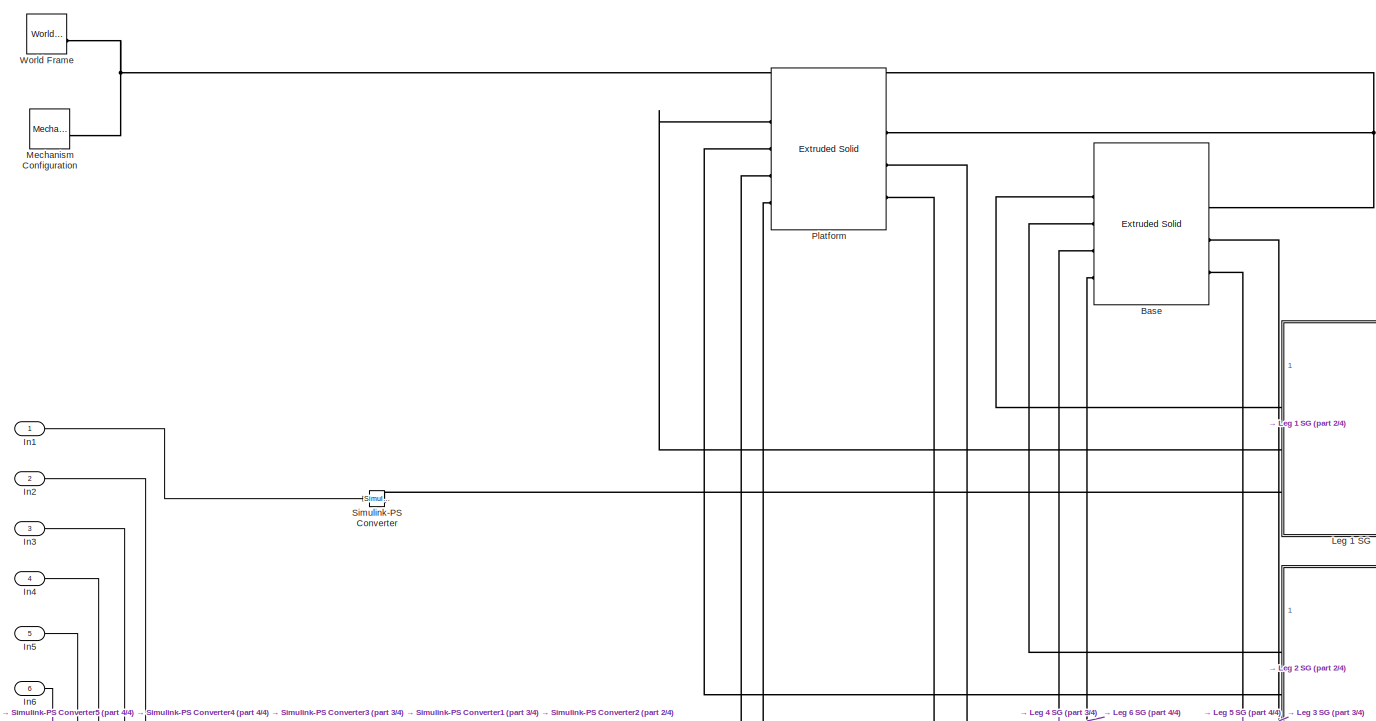
[diagram: root canvas - part 1/4, full width, top band]
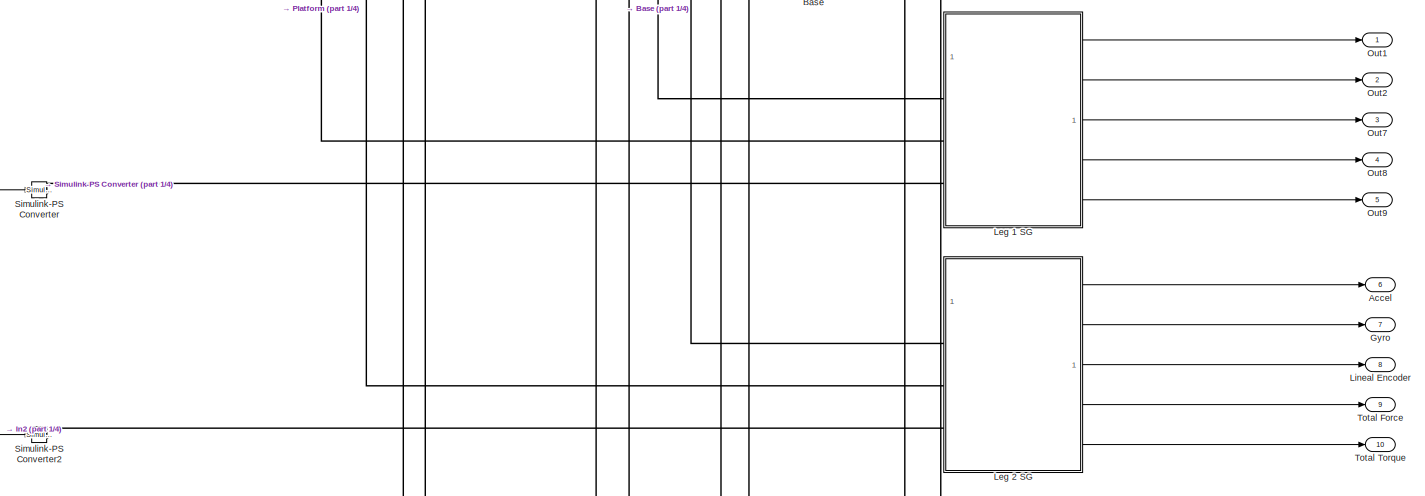
[diagram: root canvas - part 2/4, full width, top band]
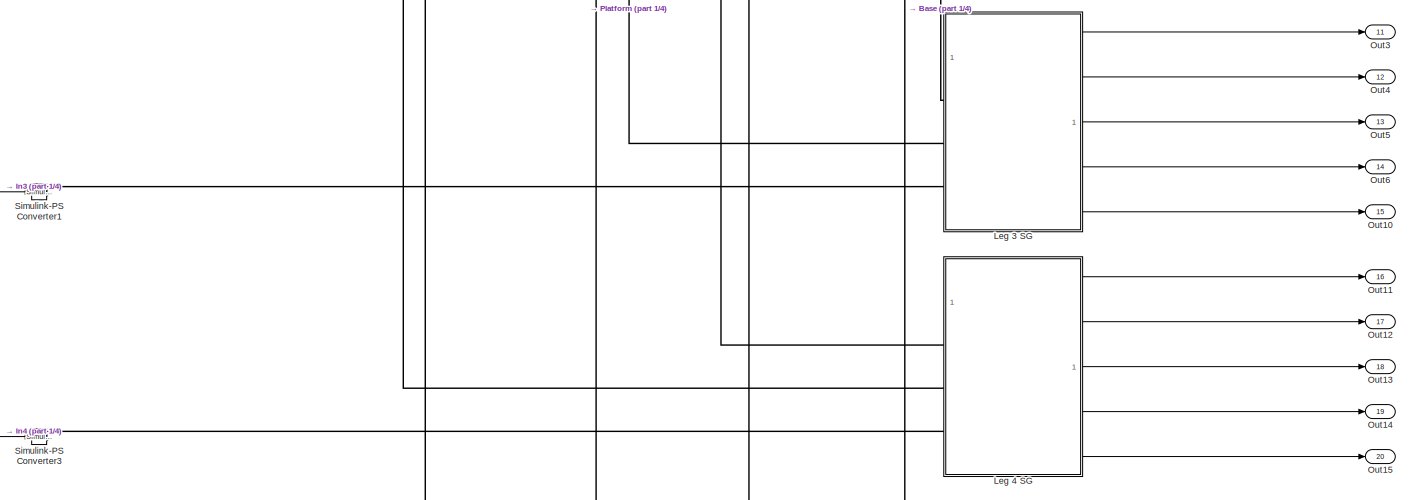
[diagram: root canvas - part 3/4, full width, middle band]
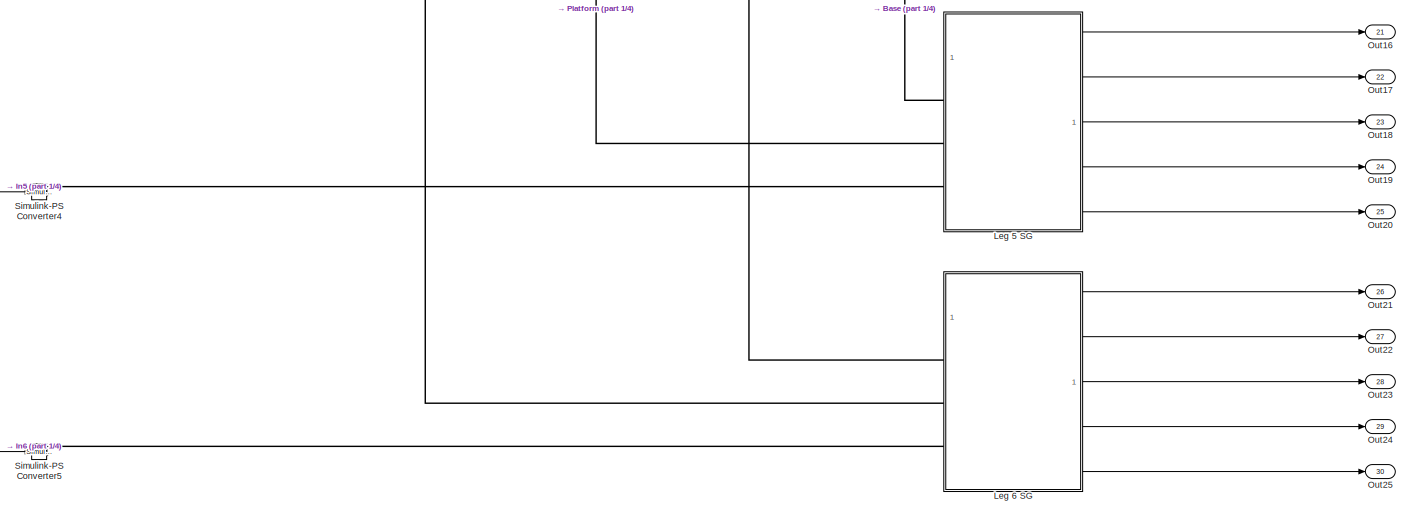
[diagram: root canvas - part 4/4, full width, bottom band]
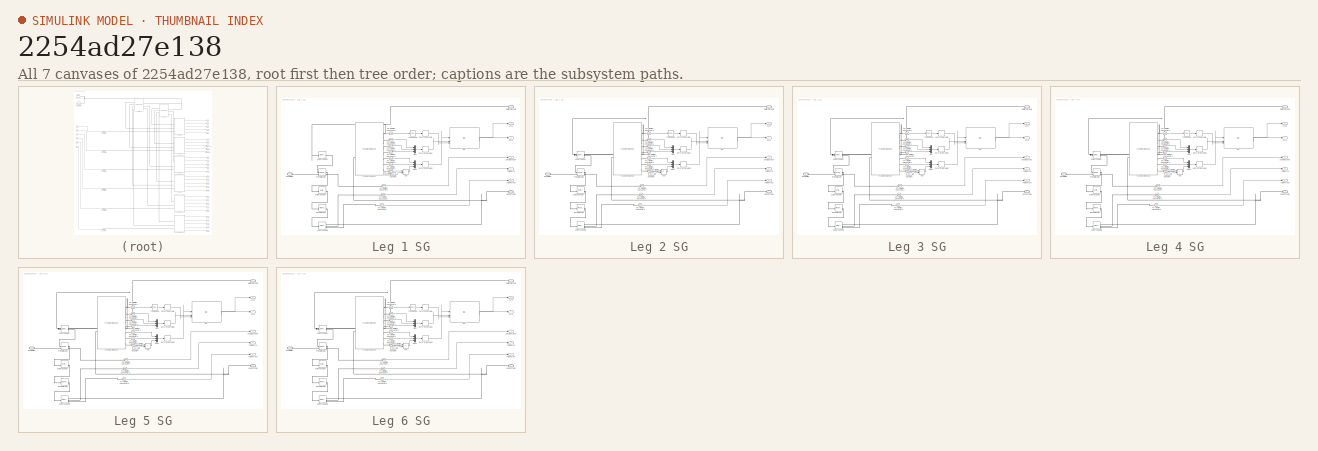
[diagram: thumbnail index - all 7 canvases of the model, root first then tree order]
MODEL slx_2254ad27e138
KIND model
CONFIG AbsTol = auto
CONFIG EnableMultiTasking = off
CONFIG FixedStep = auto
CONFIG MaxStep = auto
CONFIG MinStep = auto
CONFIG RelTol = 1e-3
CONFIG SampleTimeConstraint = Unconstrained
CONFIG SolverName = VariableStepAuto
CONFIG StartTime = 0.0
CONFIG StopTime = 10.0
BLOCK [Outport] Accel
  Port = 6
  SignalName = accel 2
BLOCK [Reference] Base  REF=sm_lib/Body Elements/Extruded Solid
  SourceBlock = sm_lib/Body Elements/Extruded Solid
  SourceType = Extruded Solid
BLOCK [Outport] Gyro
  Port = 7
  SignalName = gyro 2
BLOCK [Inport] In1
BLOCK [Inport] In2
  Port = 2
BLOCK [Inport] In3
  Port = 3
BLOCK [Inport] In4
  Port = 4
BLOCK [Inport] In5
  Port = 5
BLOCK [Inport] In6
  Port = 6
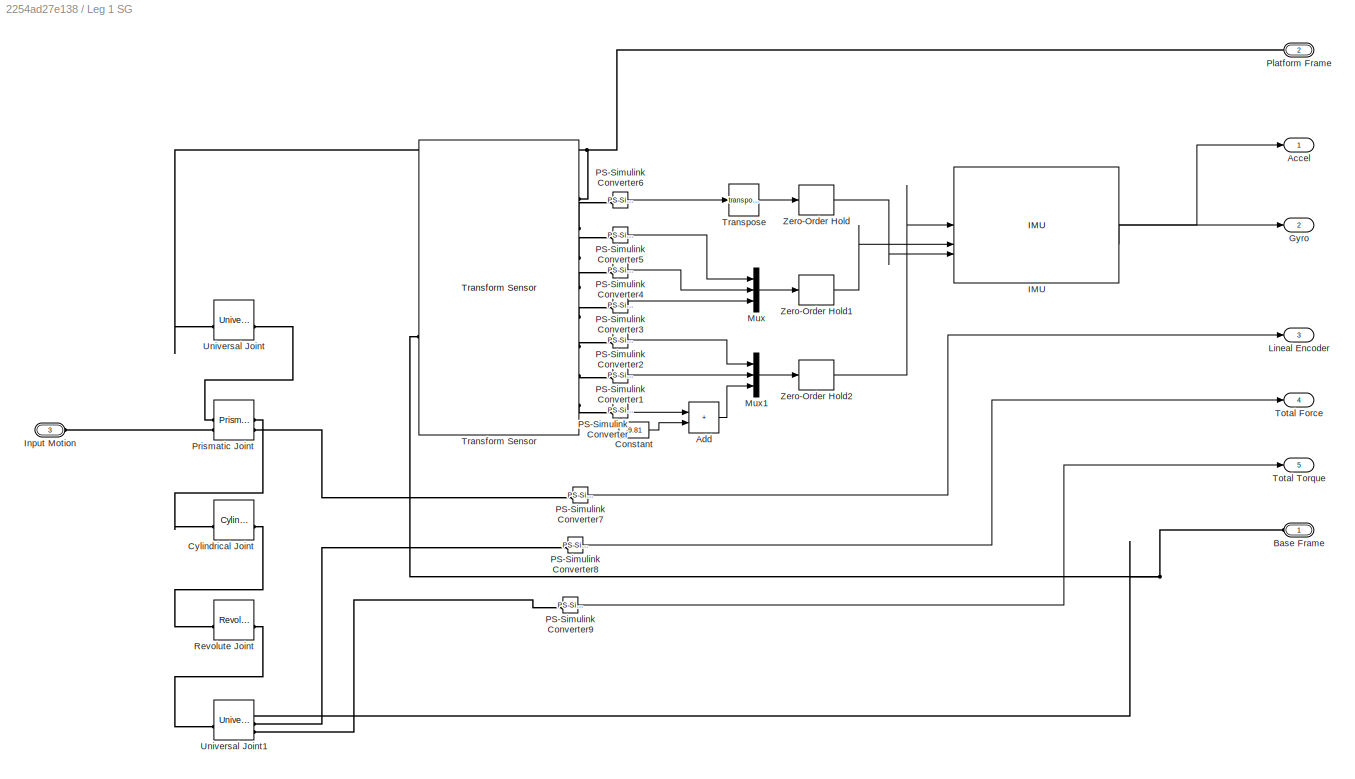
BLOCK [SubSystem] Leg 1 SG
BLOCK [Outport] Leg 1 SG/Accel
BLOCK [Sum] Leg 1 SG/Add
  IconShape = rectangular
BLOCK [PMIOPort] Leg 1 SG/Base Frame
  NameLocation = top
  Side = Left
BLOCK [Constant] Leg 1 SG/Constant
  Value = -9.81
BLOCK [Reference] Leg 1 SG/Cylindrical Joint  REF=sm_lib/Joints/Cylindrical
Joint
  SourceBlock = sm_lib/Joints/Cylindrical\nJoint
  SourceType = Cylindrical\nJoint
BLOCK [Outport] Leg 1 SG/Gyro
  Port = 2
BLOCK [Reference] Leg 1 SG/IMU  REF=mspsensorlib/IMU
  SourceBlock = mspsensorlib/IMU
  SourceType = fusion.simulink.imuSensor
BLOCK [PMIOPort] Leg 1 SG/Input Motion
  Port = 3
  Side = Left
BLOCK [Outport] Leg 1 SG/Lineal Encoder
  Port = 3
BLOCK [Mux] Leg 1 SG/Mux
  DisplayOption = bar
  Inputs = 3
BLOCK [Mux] Leg 1 SG/Mux1
  DisplayOption = bar
  Inputs = 3
BLOCK [Reference] Leg 1 SG/PS-Simulink Converter  REF=nesl_utility/PS-Simulink
Converter
  SourceBlock = nesl_utility/PS-Simulink\nConverter
  SourceType = PS-Simulink\nConverter
BLOCK [Reference] Leg 1 SG/PS-Simulink Converter1  REF=nesl_utility/PS-Simulink
Converter
  SourceBlock = nesl_utility/PS-Simulink\nConverter
  SourceType = PS-Simulink\nConverter
BLOCK [Reference] Leg 1 SG/PS-Simulink Converter2  REF=nesl_utility/PS-Simulink
Converter
  SourceBlock = nesl_utility/PS-Simulink\nConverter
  SourceType = PS-Simulink\nConverter
BLOCK [Reference] Leg 1 SG/PS-Simulink Converter3  REF=nesl_utility/PS-Simulink
Converter
  SourceBlock = nesl_utility/PS-Simulink\nConverter
  SourceType = PS-Simulink\nConverter
BLOCK [Reference] Leg 1 SG/PS-Simulink Converter4  REF=nesl_utility/PS-Simulink
Converter
  SourceBlock = nesl_utility/PS-Simulink\nConverter
  SourceType = PS-Simulink\nConverter
BLOCK [Reference] Leg 1 SG/PS-Simulink Converter5  REF=nesl_utility/PS-Simulink
Converter
  SourceBlock = nesl_utility/PS-Simulink\nConverter
  SourceType = PS-Simulink\nConverter
BLOCK [Reference] Leg 1 SG/PS-Simulink Converter6  REF=nesl_utility/PS-Simulink
Converter
  SourceBlock = nesl_utility/PS-Simulink\nConverter
  SourceType = PS-Simulink\nConverter
BLOCK [Reference] Leg 1 SG/PS-Simulink Converter7  REF=nesl_utility/PS-Simulink
Converter
  SourceBlock = nesl_utility/PS-Simulink\nConverter
  SourceType = PS-Simulink\nConverter
BLOCK [Reference] Leg 1 SG/PS-Simulink Converter8  REF=nesl_utility/PS-Simulink
Converter
  SourceBlock = nesl_utility/PS-Simulink\nConverter
  SourceType = PS-Simulink\nConverter
BLOCK [Reference] Leg 1 SG/PS-Simulink Converter9  REF=nesl_utility/PS-Simulink
Converter
  SourceBlock = nesl_utility/PS-Simulink\nConverter
  SourceType = PS-Simulink\nConverter
BLOCK [PMIOPort] Leg 1 SG/Platform Frame
  NameLocation = top
  Port = 2
  Side = Left
BLOCK [Reference] Leg 1 SG/Prismatic Joint  REF=sm_lib/Joints/Prismatic
Joint
  SourceBlock = sm_lib/Joints/Prismatic\nJoint
  SourceType = Prismatic\nJoint
BLOCK [Reference] Leg 1 SG/Revolute Joint  REF=sm_lib/Joints/Revolute Joint
  SourceBlock = sm_lib/Joints/Revolute Joint
  SourceType = Revolute Joint
BLOCK [Outport] Leg 1 SG/Total Force
  Port = 4
BLOCK [Outport] Leg 1 SG/Total Torque
  Port = 5
BLOCK [Reference] Leg 1 SG/Transform Sensor  REF=sm_lib/Frames and
Transforms/Transform
Sensor
  SourceBlock = sm_lib/Frames and\nTransforms/Transform\nSensor
  SourceType = Transform\nSensor
BLOCK [Math] Leg 1 SG/Transpose
  Operator = transpose
BLOCK [Reference] Leg 1 SG/Universal Joint  REF=sm_lib/Joints/Universal
Joint
  SourceBlock = sm_lib/Joints/Universal\nJoint
  SourceType = Universal\nJoint
BLOCK [Reference] Leg 1 SG/Universal Joint1  REF=sm_lib/Joints/Universal
Joint
  SourceBlock = sm_lib/Joints/Universal\nJoint
  SourceType = Universal\nJoint
BLOCK [ZeroOrderHold] Leg 1 SG/Zero-Order Hold
  SampleTime = -1
BLOCK [ZeroOrderHold] Leg 1 SG/Zero-Order Hold1
  SampleTime = -1
BLOCK [ZeroOrderHold] Leg 1 SG/Zero-Order Hold2
  SampleTime = -1
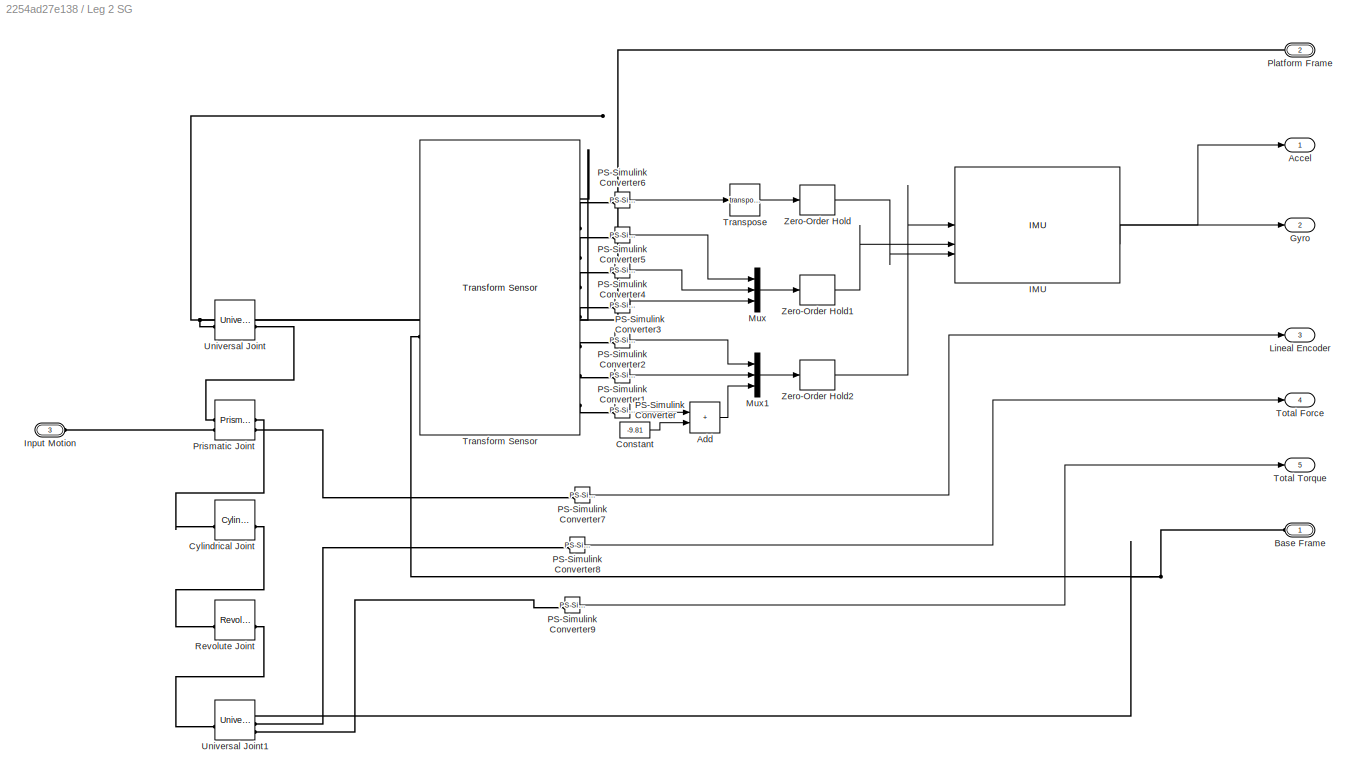
BLOCK [SubSystem] Leg 2 SG
BLOCK [Outport] Leg 2 SG/Accel
BLOCK [Sum] Leg 2 SG/Add
  IconShape = rectangular
BLOCK [PMIOPort] Leg 2 SG/Base Frame
  NameLocation = top
  Side = Left
BLOCK [Constant] Leg 2 SG/Constant
  Value = -9.81
BLOCK [Reference] Leg 2 SG/Cylindrical Joint  REF=sm_lib/Joints/Cylindrical
Joint
  SourceBlock = sm_lib/Joints/Cylindrical\nJoint
  SourceType = Cylindrical\nJoint
BLOCK [Outport] Leg 2 SG/Gyro
  Port = 2
BLOCK [Reference] Leg 2 SG/IMU  REF=mspsensorlib/IMU
  SourceBlock = mspsensorlib/IMU
  SourceType = fusion.simulink.imuSensor
BLOCK [PMIOPort] Leg 2 SG/Input Motion
  Port = 3
  Side = Left
BLOCK [Outport] Leg 2 SG/Lineal Encoder
  Port = 3
BLOCK [Mux] Leg 2 SG/Mux
  DisplayOption = bar
  Inputs = 3
BLOCK [Mux] Leg 2 SG/Mux1
  DisplayOption = bar
  Inputs = 3
BLOCK [Reference] Leg 2 SG/PS-Simulink Converter  REF=nesl_utility/PS-Simulink
Converter
  SourceBlock = nesl_utility/PS-Simulink\nConverter
  SourceType = PS-Simulink\nConverter
BLOCK [Reference] Leg 2 SG/PS-Simulink Converter1  REF=nesl_utility/PS-Simulink
Converter
  SourceBlock = nesl_utility/PS-Simulink\nConverter
  SourceType = PS-Simulink\nConverter
BLOCK [Reference] Leg 2 SG/PS-Simulink Converter2  REF=nesl_utility/PS-Simulink
Converter
  SourceBlock = nesl_utility/PS-Simulink\nConverter
  SourceType = PS-Simulink\nConverter
BLOCK [Reference] Leg 2 SG/PS-Simulink Converter3  REF=nesl_utility/PS-Simulink
Converter
  SourceBlock = nesl_utility/PS-Simulink\nConverter
  SourceType = PS-Simulink\nConverter
BLOCK [Reference] Leg 2 SG/PS-Simulink Converter4  REF=nesl_utility/PS-Simulink
Converter
  SourceBlock = nesl_utility/PS-Simulink\nConverter
  SourceType = PS-Simulink\nConverter
BLOCK [Reference] Leg 2 SG/PS-Simulink Converter5  REF=nesl_utility/PS-Simulink
Converter
  SourceBlock = nesl_utility/PS-Simulink\nConverter
  SourceType = PS-Simulink\nConverter
BLOCK [Reference] Leg 2 SG/PS-Simulink Converter6  REF=nesl_utility/PS-Simulink
Converter
  SourceBlock = nesl_utility/PS-Simulink\nConverter
  SourceType = PS-Simulink\nConverter
BLOCK [Reference] Leg 2 SG/PS-Simulink Converter7  REF=nesl_utility/PS-Simulink
Converter
  SourceBlock = nesl_utility/PS-Simulink\nConverter
  SourceType = PS-Simulink\nConverter
BLOCK [Reference] Leg 2 SG/PS-Simulink Converter8  REF=nesl_utility/PS-Simulink
Converter
  SourceBlock = nesl_utility/PS-Simulink\nConverter
  SourceType = PS-Simulink\nConverter
BLOCK [Reference] Leg 2 SG/PS-Simulink Converter9  REF=nesl_utility/PS-Simulink
Converter
  SourceBlock = nesl_utility/PS-Simulink\nConverter
  SourceType = PS-Simulink\nConverter
BLOCK [PMIOPort] Leg 2 SG/Platform Frame
  NameLocation = top
  Port = 2
  Side = Left
BLOCK [Reference] Leg 2 SG/Prismatic Joint  REF=sm_lib/Joints/Prismatic
Joint
  SourceBlock = sm_lib/Joints/Prismatic\nJoint
  SourceType = Prismatic\nJoint
BLOCK [Reference] Leg 2 SG/Revolute Joint  REF=sm_lib/Joints/Revolute Joint
  SourceBlock = sm_lib/Joints/Revolute Joint
  SourceType = Revolute Joint
BLOCK [Outport] Leg 2 SG/Total Force
  Port = 4
BLOCK [Outport] Leg 2 SG/Total Torque
  Port = 5
BLOCK [Reference] Leg 2 SG/Transform Sensor  REF=sm_lib/Frames and
Transforms/Transform
Sensor
  SourceBlock = sm_lib/Frames and\nTransforms/Transform\nSensor
  SourceType = Transform\nSensor
BLOCK [Math] Leg 2 SG/Transpose
  Operator = transpose
BLOCK [Reference] Leg 2 SG/Universal Joint  REF=sm_lib/Joints/Universal
Joint
  SourceBlock = sm_lib/Joints/Universal\nJoint
  SourceType = Universal\nJoint
BLOCK [Reference] Leg 2 SG/Universal Joint1  REF=sm_lib/Joints/Universal
Joint
  SourceBlock = sm_lib/Joints/Universal\nJoint
  SourceType = Universal\nJoint
BLOCK [ZeroOrderHold] Leg 2 SG/Zero-Order Hold
  SampleTime = -1
BLOCK [ZeroOrderHold] Leg 2 SG/Zero-Order Hold1
  SampleTime = -1
BLOCK [ZeroOrderHold] Leg 2 SG/Zero-Order Hold2
  SampleTime = -1
BLOCK [SubSystem] Leg 3 SG
BLOCK [Outport] Leg 3 SG/Accel
BLOCK [Sum] Leg 3 SG/Add
  IconShape = rectangular
BLOCK [PMIOPort] Leg 3 SG/Base Frame
  NameLocation = top
  Side = Left
BLOCK [Constant] Leg 3 SG/Constant
  Value = -9.81
BLOCK [Reference] Leg 3 SG/Cylindrical Joint  REF=sm_lib/Joints/Cylindrical
Joint
  SourceBlock = sm_lib/Joints/Cylindrical\nJoint
  SourceType = Cylindrical\nJoint
BLOCK [Outport] Leg 3 SG/Gyro
  Port = 2
BLOCK [Reference] Leg 3 SG/IMU  REF=mspsensorlib/IMU
  SourceBlock = mspsensorlib/IMU
  SourceType = fusion.simulink.imuSensor
BLOCK [PMIOPort] Leg 3 SG/Input Motion
  Port = 3
  Side = Left
BLOCK [Outport] Leg 3 SG/Lineal Encoder
  Port = 3
BLOCK [Mux] Leg 3 SG/Mux
  DisplayOption = bar
  Inputs = 3
BLOCK [Mux] Leg 3 SG/Mux1
  DisplayOption = bar
  Inputs = 3
BLOCK [Reference] Leg 3 SG/PS-Simulink Converter  REF=nesl_utility/PS-Simulink
Converter
  SourceBlock = nesl_utility/PS-Simulink\nConverter
  SourceType = PS-Simulink\nConverter
BLOCK [Reference] Leg 3 SG/PS-Simulink Converter1  REF=nesl_utility/PS-Simulink
Converter
  SourceBlock = nesl_utility/PS-Simulink\nConverter
  SourceType = PS-Simulink\nConverter
BLOCK [Reference] Leg 3 SG/PS-Simulink Converter2  REF=nesl_utility/PS-Simulink
Converter
  SourceBlock = nesl_utility/PS-Simulink\nConverter
  SourceType = PS-Simulink\nConverter
BLOCK [Reference] Leg 3 SG/PS-Simulink Converter3  REF=nesl_utility/PS-Simulink
Converter
  SourceBlock = nesl_utility/PS-Simulink\nConverter
  SourceType = PS-Simulink\nConverter
BLOCK [Reference] Leg 3 SG/PS-Simulink Converter4  REF=nesl_utility/PS-Simulink
Converter
  SourceBlock = nesl_utility/PS-Simulink\nConverter
  SourceType = PS-Simulink\nConverter
BLOCK [Reference] Leg 3 SG/PS-Simulink Converter5  REF=nesl_utility/PS-Simulink
Converter
  SourceBlock = nesl_utility/PS-Simulink\nConverter
  SourceType = PS-Simulink\nConverter
BLOCK [Reference] Leg 3 SG/PS-Simulink Converter6  REF=nesl_utility/PS-Simulink
Converter
  SourceBlock = nesl_utility/PS-Simulink\nConverter
  SourceType = PS-Simulink\nConverter
BLOCK [Reference] Leg 3 SG/PS-Simulink Converter7  REF=nesl_utility/PS-Simulink
Converter
  SourceBlock = nesl_utility/PS-Simulink\nConverter
  SourceType = PS-Simulink\nConverter
BLOCK [Reference] Leg 3 SG/PS-Simulink Converter8  REF=nesl_utility/PS-Simulink
Converter
  SourceBlock = nesl_utility/PS-Simulink\nConverter
  SourceType = PS-Simulink\nConverter
BLOCK [Reference] Leg 3 SG/PS-Simulink Converter9  REF=nesl_utility/PS-Simulink
Converter
  SourceBlock = nesl_utility/PS-Simulink\nConverter
  SourceType = PS-Simulink\nConverter
BLOCK [PMIOPort] Leg 3 SG/Platform Frame
  NameLocation = top
  Port = 2
  Side = Left
BLOCK [Reference] Leg 3 SG/Prismatic Joint  REF=sm_lib/Joints/Prismatic
Joint
  SourceBlock = sm_lib/Joints/Prismatic\nJoint
  SourceType = Prismatic\nJoint
BLOCK [Reference] Leg 3 SG/Revolute Joint  REF=sm_lib/Joints/Revolute Joint
  SourceBlock = sm_lib/Joints/Revolute Joint
  SourceType = Revolute Joint
BLOCK [Outport] Leg 3 SG/Total Force
  Port = 4
BLOCK [Outport] Leg 3 SG/Total Torque
  Port = 5
BLOCK [Reference] Leg 3 SG/Transform Sensor  REF=sm_lib/Frames and
Transforms/Transform
Sensor
  SourceBlock = sm_lib/Frames and\nTransforms/Transform\nSensor
  SourceType = Transform\nSensor
BLOCK [Math] Leg 3 SG/Transpose
  Operator = transpose
BLOCK [Reference] Leg 3 SG/Universal Joint  REF=sm_lib/Joints/Universal
Joint
  SourceBlock = sm_lib/Joints/Universal\nJoint
  SourceType = Universal\nJoint
BLOCK [Reference] Leg 3 SG/Universal Joint1  REF=sm_lib/Joints/Universal
Joint
  SourceBlock = sm_lib/Joints/Universal\nJoint
  SourceType = Universal\nJoint
BLOCK [ZeroOrderHold] Leg 3 SG/Zero-Order Hold
  SampleTime = -1
BLOCK [ZeroOrderHold] Leg 3 SG/Zero-Order Hold1
  SampleTime = -1
BLOCK [ZeroOrderHold] Leg 3 SG/Zero-Order Hold2
  SampleTime = -1
BLOCK [SubSystem] Leg 4 SG
BLOCK [Outport] Leg 4 SG/Accel
BLOCK [Sum] Leg 4 SG/Add
  IconShape = rectangular
BLOCK [PMIOPort] Leg 4 SG/Base Frame
  NameLocation = top
  Side = Left
BLOCK [Constant] Leg 4 SG/Constant
  Value = -9.81
BLOCK [Reference] Leg 4 SG/Cylindrical Joint  REF=sm_lib/Joints/Cylindrical
Joint
  SourceBlock = sm_lib/Joints/Cylindrical\nJoint
  SourceType = Cylindrical\nJoint
BLOCK [Outport] Leg 4 SG/Gyro
  Port = 2
BLOCK [Reference] Leg 4 SG/IMU  REF=mspsensorlib/IMU
  SourceBlock = mspsensorlib/IMU
  SourceType = fusion.simulink.imuSensor
BLOCK [PMIOPort] Leg 4 SG/Input Motion
  Port = 3
  Side = Left
BLOCK [Outport] Leg 4 SG/Lineal Encoder
  Port = 3
BLOCK [Mux] Leg 4 SG/Mux
  DisplayOption = bar
  Inputs = 3
BLOCK [Mux] Leg 4 SG/Mux1
  DisplayOption = bar
  Inputs = 3
BLOCK [Reference] Leg 4 SG/PS-Simulink Converter  REF=nesl_utility/PS-Simulink
Converter
  SourceBlock = nesl_utility/PS-Simulink\nConverter
  SourceType = PS-Simulink\nConverter
BLOCK [Reference] Leg 4 SG/PS-Simulink Converter1  REF=nesl_utility/PS-Simulink
Converter
  SourceBlock = nesl_utility/PS-Simulink\nConverter
  SourceType = PS-Simulink\nConverter
BLOCK [Reference] Leg 4 SG/PS-Simulink Converter2  REF=nesl_utility/PS-Simulink
Converter
  SourceBlock = nesl_utility/PS-Simulink\nConverter
  SourceType = PS-Simulink\nConverter
BLOCK [Reference] Leg 4 SG/PS-Simulink Converter3  REF=nesl_utility/PS-Simulink
Converter
  SourceBlock = nesl_utility/PS-Simulink\nConverter
  SourceType = PS-Simulink\nConverter
BLOCK [Reference] Leg 4 SG/PS-Simulink Converter4  REF=nesl_utility/PS-Simulink
Converter
  SourceBlock = nesl_utility/PS-Simulink\nConverter
  SourceType = PS-Simulink\nConverter
BLOCK [Reference] Leg 4 SG/PS-Simulink Converter5  REF=nesl_utility/PS-Simulink
Converter
  SourceBlock = nesl_utility/PS-Simulink\nConverter
  SourceType = PS-Simulink\nConverter
BLOCK [Reference] Leg 4 SG/PS-Simulink Converter6  REF=nesl_utility/PS-Simulink
Converter
  SourceBlock = nesl_utility/PS-Simulink\nConverter
  SourceType = PS-Simulink\nConverter
BLOCK [Reference] Leg 4 SG/PS-Simulink Converter7  REF=nesl_utility/PS-Simulink
Converter
  SourceBlock = nesl_utility/PS-Simulink\nConverter
  SourceType = PS-Simulink\nConverter
BLOCK [Reference] Leg 4 SG/PS-Simulink Converter8  REF=nesl_utility/PS-Simulink
Converter
  SourceBlock = nesl_utility/PS-Simulink\nConverter
  SourceType = PS-Simulink\nConverter
BLOCK [Reference] Leg 4 SG/PS-Simulink Converter9  REF=nesl_utility/PS-Simulink
Converter
  SourceBlock = nesl_utility/PS-Simulink\nConverter
  SourceType = PS-Simulink\nConverter
BLOCK [PMIOPort] Leg 4 SG/Platform Frame
  NameLocation = top
  Port = 2
  Side = Left
BLOCK [Reference] Leg 4 SG/Prismatic Joint  REF=sm_lib/Joints/Prismatic
Joint
  SourceBlock = sm_lib/Joints/Prismatic\nJoint
  SourceType = Prismatic\nJoint
BLOCK [Reference] Leg 4 SG/Revolute Joint  REF=sm_lib/Joints/Revolute Joint
  SourceBlock = sm_lib/Joints/Revolute Joint
  SourceType = Revolute Joint
BLOCK [Outport] Leg 4 SG/Total Force
  Port = 4
BLOCK [Outport] Leg 4 SG/Total Torque
  Port = 5
BLOCK [Reference] Leg 4 SG/Transform Sensor  REF=sm_lib/Frames and
Transforms/Transform
Sensor
  SourceBlock = sm_lib/Frames and\nTransforms/Transform\nSensor
  SourceType = Transform\nSensor
BLOCK [Math] Leg 4 SG/Transpose
  Operator = transpose
BLOCK [Reference] Leg 4 SG/Universal Joint  REF=sm_lib/Joints/Universal
Joint
  SourceBlock = sm_lib/Joints/Universal\nJoint
  SourceType = Universal\nJoint
BLOCK [Reference] Leg 4 SG/Universal Joint1  REF=sm_lib/Joints/Universal
Joint
  SourceBlock = sm_lib/Joints/Universal\nJoint
  SourceType = Universal\nJoint
BLOCK [ZeroOrderHold] Leg 4 SG/Zero-Order Hold
  SampleTime = -1
BLOCK [ZeroOrderHold] Leg 4 SG/Zero-Order Hold1
  SampleTime = -1
BLOCK [ZeroOrderHold] Leg 4 SG/Zero-Order Hold2
  SampleTime = -1
BLOCK [SubSystem] Leg 5 SG
BLOCK [Outport] Leg 5 SG/Accel
BLOCK [Sum] Leg 5 SG/Add
  IconShape = rectangular
BLOCK [PMIOPort] Leg 5 SG/Base Frame
  NameLocation = top
  Side = Left
BLOCK [Constant] Leg 5 SG/Constant
  Value = -9.81
BLOCK [Reference] Leg 5 SG/Cylindrical Joint  REF=sm_lib/Joints/Cylindrical
Joint
  SourceBlock = sm_lib/Joints/Cylindrical\nJoint
  SourceType = Cylindrical\nJoint
BLOCK [Outport] Leg 5 SG/Gyro
  Port = 2
BLOCK [Reference] Leg 5 SG/IMU  REF=mspsensorlib/IMU
  SourceBlock = mspsensorlib/IMU
  SourceType = fusion.simulink.imuSensor
BLOCK [PMIOPort] Leg 5 SG/Input Motion
  Port = 3
  Side = Left
BLOCK [Outport] Leg 5 SG/Lineal Encoder
  Port = 3
BLOCK [Mux] Leg 5 SG/Mux
  DisplayOption = bar
  Inputs = 3
BLOCK [Mux] Leg 5 SG/Mux1
  DisplayOption = bar
  Inputs = 3
BLOCK [Reference] Leg 5 SG/PS-Simulink Converter  REF=nesl_utility/PS-Simulink
Converter
  SourceBlock = nesl_utility/PS-Simulink\nConverter
  SourceType = PS-Simulink\nConverter
BLOCK [Reference] Leg 5 SG/PS-Simulink Converter1  REF=nesl_utility/PS-Simulink
Converter
  SourceBlock = nesl_utility/PS-Simulink\nConverter
  SourceType = PS-Simulink\nConverter
BLOCK [Reference] Leg 5 SG/PS-Simulink Converter2  REF=nesl_utility/PS-Simulink
Converter
  SourceBlock = nesl_utility/PS-Simulink\nConverter
  SourceType = PS-Simulink\nConverter
BLOCK [Reference] Leg 5 SG/PS-Simulink Converter3  REF=nesl_utility/PS-Simulink
Converter
  SourceBlock = nesl_utility/PS-Simulink\nConverter
  SourceType = PS-Simulink\nConverter
BLOCK [Reference] Leg 5 SG/PS-Simulink Converter4  REF=nesl_utility/PS-Simulink
Converter
  SourceBlock = nesl_utility/PS-Simulink\nConverter
  SourceType = PS-Simulink\nConverter
BLOCK [Reference] Leg 5 SG/PS-Simulink Converter5  REF=nesl_utility/PS-Simulink
Converter
  SourceBlock = nesl_utility/PS-Simulink\nConverter
  SourceType = PS-Simulink\nConverter
BLOCK [Reference] Leg 5 SG/PS-Simulink Converter6  REF=nesl_utility/PS-Simulink
Converter
  SourceBlock = nesl_utility/PS-Simulink\nConverter
  SourceType = PS-Simulink\nConverter
BLOCK [Reference] Leg 5 SG/PS-Simulink Converter7  REF=nesl_utility/PS-Simulink
Converter
  SourceBlock = nesl_utility/PS-Simulink\nConverter
  SourceType = PS-Simulink\nConverter
BLOCK [Reference] Leg 5 SG/PS-Simulink Converter8  REF=nesl_utility/PS-Simulink
Converter
  SourceBlock = nesl_utility/PS-Simulink\nConverter
  SourceType = PS-Simulink\nConverter
BLOCK [Reference] Leg 5 SG/PS-Simulink Converter9  REF=nesl_utility/PS-Simulink
Converter
  SourceBlock = nesl_utility/PS-Simulink\nConverter
  SourceType = PS-Simulink\nConverter
BLOCK [PMIOPort] Leg 5 SG/Platform Frame
  NameLocation = top
  Port = 2
  Side = Left
BLOCK [Reference] Leg 5 SG/Prismatic Joint  REF=sm_lib/Joints/Prismatic
Joint
  SourceBlock = sm_lib/Joints/Prismatic\nJoint
  SourceType = Prismatic\nJoint
BLOCK [Reference] Leg 5 SG/Revolute Joint  REF=sm_lib/Joints/Revolute Joint
  SourceBlock = sm_lib/Joints/Revolute Joint
  SourceType = Revolute Joint
BLOCK [Outport] Leg 5 SG/Total Force
  Port = 4
BLOCK [Outport] Leg 5 SG/Total Torque
  Port = 5
BLOCK [Reference] Leg 5 SG/Transform Sensor  REF=sm_lib/Frames and
Transforms/Transform
Sensor
  SourceBlock = sm_lib/Frames and\nTransforms/Transform\nSensor
  SourceType = Transform\nSensor
BLOCK [Math] Leg 5 SG/Transpose
  Operator = transpose
BLOCK [Reference] Leg 5 SG/Universal Joint  REF=sm_lib/Joints/Universal
Joint
  SourceBlock = sm_lib/Joints/Universal\nJoint
  SourceType = Universal\nJoint
BLOCK [Reference] Leg 5 SG/Universal Joint1  REF=sm_lib/Joints/Universal
Joint
  SourceBlock = sm_lib/Joints/Universal\nJoint
  SourceType = Universal\nJoint
BLOCK [ZeroOrderHold] Leg 5 SG/Zero-Order Hold
  SampleTime = -1
BLOCK [ZeroOrderHold] Leg 5 SG/Zero-Order Hold1
  SampleTime = -1
BLOCK [ZeroOrderHold] Leg 5 SG/Zero-Order Hold2
  SampleTime = -1
BLOCK [SubSystem] Leg 6 SG
BLOCK [Outport] Leg 6 SG/Accel
BLOCK [Sum] Leg 6 SG/Add
  IconShape = rectangular
BLOCK [PMIOPort] Leg 6 SG/Base Frame
  NameLocation = top
  Side = Left
BLOCK [Constant] Leg 6 SG/Constant
  Value = -9.81
BLOCK [Reference] Leg 6 SG/Cylindrical Joint  REF=sm_lib/Joints/Cylindrical
Joint
  SourceBlock = sm_lib/Joints/Cylindrical\nJoint
  SourceType = Cylindrical\nJoint
BLOCK [Outport] Leg 6 SG/Gyro
  Port = 2
BLOCK [Reference] Leg 6 SG/IMU  REF=mspsensorlib/IMU
  SourceBlock = mspsensorlib/IMU
  SourceType = fusion.simulink.imuSensor
BLOCK [PMIOPort] Leg 6 SG/Input Motion
  Port = 3
  Side = Left
BLOCK [Outport] Leg 6 SG/Lineal Encoder
  Port = 3
BLOCK [Mux] Leg 6 SG/Mux
  DisplayOption = bar
  Inputs = 3
BLOCK [Mux] Leg 6 SG/Mux1
  DisplayOption = bar
  Inputs = 3
BLOCK [Reference] Leg 6 SG/PS-Simulink Converter  REF=nesl_utility/PS-Simulink
Converter
  SourceBlock = nesl_utility/PS-Simulink\nConverter
  SourceType = PS-Simulink\nConverter
BLOCK [Reference] Leg 6 SG/PS-Simulink Converter1  REF=nesl_utility/PS-Simulink
Converter
  SourceBlock = nesl_utility/PS-Simulink\nConverter
  SourceType = PS-Simulink\nConverter
BLOCK [Reference] Leg 6 SG/PS-Simulink Converter2  REF=nesl_utility/PS-Simulink
Converter
  SourceBlock = nesl_utility/PS-Simulink\nConverter
  SourceType = PS-Simulink\nConverter
BLOCK [Reference] Leg 6 SG/PS-Simulink Converter3  REF=nesl_utility/PS-Simulink
Converter
  SourceBlock = nesl_utility/PS-Simulink\nConverter
  SourceType = PS-Simulink\nConverter
BLOCK [Reference] Leg 6 SG/PS-Simulink Converter4  REF=nesl_utility/PS-Simulink
Converter
  SourceBlock = nesl_utility/PS-Simulink\nConverter
  SourceType = PS-Simulink\nConverter
BLOCK [Reference] Leg 6 SG/PS-Simulink Converter5  REF=nesl_utility/PS-Simulink
Converter
  SourceBlock = nesl_utility/PS-Simulink\nConverter
  SourceType = PS-Simulink\nConverter
BLOCK [Reference] Leg 6 SG/PS-Simulink Converter6  REF=nesl_utility/PS-Simulink
Converter
  SourceBlock = nesl_utility/PS-Simulink\nConverter
  SourceType = PS-Simulink\nConverter
BLOCK [Reference] Leg 6 SG/PS-Simulink Converter7  REF=nesl_utility/PS-Simulink
Converter
  SourceBlock = nesl_utility/PS-Simulink\nConverter
  SourceType = PS-Simulink\nConverter
BLOCK [Reference] Leg 6 SG/PS-Simulink Converter8  REF=nesl_utility/PS-Simulink
Converter
  SourceBlock = nesl_utility/PS-Simulink\nConverter
  SourceType = PS-Simulink\nConverter
BLOCK [Reference] Leg 6 SG/PS-Simulink Converter9  REF=nesl_utility/PS-Simulink
Converter
  SourceBlock = nesl_utility/PS-Simulink\nConverter
  SourceType = PS-Simulink\nConverter
BLOCK [PMIOPort] Leg 6 SG/Platform Frame
  NameLocation = top
  Port = 2
  Side = Left
BLOCK [Reference] Leg 6 SG/Prismatic Joint  REF=sm_lib/Joints/Prismatic
Joint
  SourceBlock = sm_lib/Joints/Prismatic\nJoint
  SourceType = Prismatic\nJoint
BLOCK [Reference] Leg 6 SG/Revolute Joint  REF=sm_lib/Joints/Revolute Joint
  SourceBlock = sm_lib/Joints/Revolute Joint
  SourceType = Revolute Joint
BLOCK [Outport] Leg 6 SG/Total Force
  Port = 4
BLOCK [Outport] Leg 6 SG/Total Torque
  Port = 5
BLOCK [Reference] Leg 6 SG/Transform Sensor  REF=sm_lib/Frames and
Transforms/Transform
Sensor
  SourceBlock = sm_lib/Frames and\nTransforms/Transform\nSensor
  SourceType = Transform\nSensor
BLOCK [Math] Leg 6 SG/Transpose
  Operator = transpose
BLOCK [Reference] Leg 6 SG/Universal Joint  REF=sm_lib/Joints/Universal
Joint
  SourceBlock = sm_lib/Joints/Universal\nJoint
  SourceType = Universal\nJoint
BLOCK [Reference] Leg 6 SG/Universal Joint1  REF=sm_lib/Joints/Universal
Joint
  SourceBlock = sm_lib/Joints/Universal\nJoint
  SourceType = Universal\nJoint
BLOCK [ZeroOrderHold] Leg 6 SG/Zero-Order Hold
  SampleTime = -1
BLOCK [ZeroOrderHold] Leg 6 SG/Zero-Order Hold1
  SampleTime = -1
BLOCK [ZeroOrderHold] Leg 6 SG/Zero-Order Hold2
  SampleTime = -1
BLOCK [Outport] Lineal Encoder
  Port = 8
  SignalName = lineal_encoder 2
BLOCK [Reference] Mechanism Configuration  REF=sm_lib/Utilities/Mechanism
Configuration
  SourceBlock = sm_lib/Utilities/Mechanism\nConfiguration
  SourceType = Mechanism\nConfiguration
BLOCK [Outport] Out1
  SignalName = accel 1
BLOCK [Outport] Out10
  Port = 15
  SignalName = total_torque 3
BLOCK [Outport] Out11
  Port = 16
  SignalName = accel 4
BLOCK [Outport] Out12
  Port = 17
  SignalName = gyro 4
BLOCK [Outport] Out13
  Port = 18
  SignalName = lineal_encoder 4
BLOCK [Outport] Out14
  Port = 19
  SignalName = total_force 4
BLOCK [Outport] Out15
  Port = 20
  SignalName = total_torque 4
BLOCK [Outport] Out16
  Port = 21
  SignalName = accel 5
BLOCK [Outport] Out17
  Port = 22
  SignalName = gyro 5
BLOCK [Outport] Out18
  Port = 23
  SignalName = lineal_encoder 5
BLOCK [Outport] Out19
  Port = 24
  SignalName = total_force 5
BLOCK [Outport] Out2
  Port = 2
  SignalName = gyro 1
BLOCK [Outport] Out20
  Port = 25
  SignalName = total_torque 5
BLOCK [Outport] Out21
  Port = 26
  SignalName = accel 6
BLOCK [Outport] Out22
  Port = 27
  SignalName = gyro 6
BLOCK [Outport] Out23
  Port = 28
  SignalName = lineal_encoder 6
BLOCK [Outport] Out24
  Port = 29
  SignalName = total_force 6
BLOCK [Outport] Out25
  Port = 30
  SignalName = total_torque 6
BLOCK [Outport] Out3
  Port = 11
  SignalName = accel 3
BLOCK [Outport] Out4
  Port = 12
  SignalName = gyro 3
BLOCK [Outport] Out5
  Port = 13
  SignalName = lineal_encoder 3
BLOCK [Outport] Out6
  Port = 14
  SignalName = total_force 3
BLOCK [Outport] Out7
  Port = 3
  SignalName = lineal_encoder 1
BLOCK [Outport] Out8
  Port = 4
  SignalName = total_force 1
BLOCK [Outport] Out9
  Port = 5
  SignalName = total_torque 1
BLOCK [Reference] Platform  REF=sm_lib/Body Elements/Extruded Solid
  SourceBlock = sm_lib/Body Elements/Extruded Solid
  SourceType = Extruded Solid
BLOCK [Reference] Simulink-PS Converter  REF=nesl_utility/Simulink-PS
Converter
  SourceBlock = nesl_utility/Simulink-PS\nConverter
  SourceType = Simulink-PS\nConverter
BLOCK [Reference] Simulink-PS Converter1  REF=nesl_utility/Simulink-PS
Converter
  SourceBlock = nesl_utility/Simulink-PS\nConverter
  SourceType = Simulink-PS\nConverter
BLOCK [Reference] Simulink-PS Converter2  REF=nesl_utility/Simulink-PS
Converter
  SourceBlock = nesl_utility/Simulink-PS\nConverter
  SourceType = Simulink-PS\nConverter
BLOCK [Reference] Simulink-PS Converter3  REF=nesl_utility/Simulink-PS
Converter
  SourceBlock = nesl_utility/Simulink-PS\nConverter
  SourceType = Simulink-PS\nConverter
BLOCK [Reference] Simulink-PS Converter4  REF=nesl_utility/Simulink-PS
Converter
  SourceBlock = nesl_utility/Simulink-PS\nConverter
  SourceType = Simulink-PS\nConverter
BLOCK [Reference] Simulink-PS Converter5  REF=nesl_utility/Simulink-PS
Converter
  SourceBlock = nesl_utility/Simulink-PS\nConverter
  SourceType = Simulink-PS\nConverter
BLOCK [Outport] Total Force
  Port = 9
  SignalName = total_force 2
BLOCK [Outport] Total Torque
  Port = 10
  SignalName = total_torque 2
BLOCK [Reference] World Frame  REF=sm_lib/Frames and
Transforms/World Frame
  SourceBlock = sm_lib/Frames and\nTransforms/World Frame
  SourceType = World Frame
LINE In1:1 -> Simulink-PS Converter:1
LINE In2:1 -> Simulink-PS Converter2:1
LINE In3:1 -> Simulink-PS Converter1:1
LINE In4:1 -> Simulink-PS Converter3:1
LINE In5:1 -> Simulink-PS Converter4:1
LINE In6:1 -> Simulink-PS Converter5:1
LINE Leg 1 SG/Add:1 -> Leg 1 SG/Mux1:3
LINE Leg 1 SG/Constant:1 -> Leg 1 SG/Add:2
LINE Leg 1 SG/IMU:1 -> Leg 1 SG/Accel:1
LINE Leg 1 SG/IMU:2 -> Leg 1 SG/Gyro:1
LINE Leg 1 SG/Mux1:1 -> Leg 1 SG/Zero-Order Hold2:1
LINE Leg 1 SG/Mux:1 -> Leg 1 SG/Zero-Order Hold1:1
LINE Leg 1 SG/PS-Simulink Converter1:1 -> Leg 1 SG/Mux1:2
LINE Leg 1 SG/PS-Simulink Converter2:1 -> Leg 1 SG/Mux1:1
LINE Leg 1 SG/PS-Simulink Converter3:1 -> Leg 1 SG/Mux:3
LINE Leg 1 SG/PS-Simulink Converter4:1 -> Leg 1 SG/Mux:2
LINE Leg 1 SG/PS-Simulink Converter5:1 -> Leg 1 SG/Mux:1
LINE Leg 1 SG/PS-Simulink Converter6:1 -> Leg 1 SG/Transpose:1
LINE Leg 1 SG/PS-Simulink Converter7:1 -> Leg 1 SG/Lineal Encoder:1
LINE Leg 1 SG/PS-Simulink Converter8:1 -> Leg 1 SG/Total Force:1
LINE Leg 1 SG/PS-Simulink Converter9:1 -> Leg 1 SG/Total Torque:1
LINE Leg 1 SG/PS-Simulink Converter:1 -> Leg 1 SG/Add:1
LINE Leg 1 SG/Transpose:1 -> Leg 1 SG/Zero-Order Hold:1
LINE Leg 1 SG/Zero-Order Hold1:1 -> Leg 1 SG/IMU:2
LINE Leg 1 SG/Zero-Order Hold2:1 -> Leg 1 SG/IMU:1
LINE Leg 1 SG/Zero-Order Hold:1 -> Leg 1 SG/IMU:3
LINE Leg 1 SG:1 -> Out1:1
LINE Leg 1 SG:2 -> Out2:1
LINE Leg 1 SG:3 -> Out7:1
LINE Leg 1 SG:4 -> Out8:1
LINE Leg 1 SG:5 -> Out9:1
LINE Leg 2 SG/Add:1 -> Leg 2 SG/Mux1:3
LINE Leg 2 SG/Constant:1 -> Leg 2 SG/Add:2
LINE Leg 2 SG/IMU:1 -> Leg 2 SG/Accel:1
LINE Leg 2 SG/IMU:2 -> Leg 2 SG/Gyro:1
LINE Leg 2 SG/Mux1:1 -> Leg 2 SG/Zero-Order Hold2:1
LINE Leg 2 SG/Mux:1 -> Leg 2 SG/Zero-Order Hold1:1
LINE Leg 2 SG/PS-Simulink Converter1:1 -> Leg 2 SG/Mux1:2
LINE Leg 2 SG/PS-Simulink Converter2:1 -> Leg 2 SG/Mux1:1
LINE Leg 2 SG/PS-Simulink Converter3:1 -> Leg 2 SG/Mux:3
LINE Leg 2 SG/PS-Simulink Converter4:1 -> Leg 2 SG/Mux:2
LINE Leg 2 SG/PS-Simulink Converter5:1 -> Leg 2 SG/Mux:1
LINE Leg 2 SG/PS-Simulink Converter6:1 -> Leg 2 SG/Transpose:1
LINE Leg 2 SG/PS-Simulink Converter7:1 -> Leg 2 SG/Lineal Encoder:1
LINE Leg 2 SG/PS-Simulink Converter8:1 -> Leg 2 SG/Total Force:1
LINE Leg 2 SG/PS-Simulink Converter9:1 -> Leg 2 SG/Total Torque:1
LINE Leg 2 SG/PS-Simulink Converter:1 -> Leg 2 SG/Add:1
LINE Leg 2 SG/Transpose:1 -> Leg 2 SG/Zero-Order Hold:1
LINE Leg 2 SG/Zero-Order Hold1:1 -> Leg 2 SG/IMU:2
LINE Leg 2 SG/Zero-Order Hold2:1 -> Leg 2 SG/IMU:1
LINE Leg 2 SG/Zero-Order Hold:1 -> Leg 2 SG/IMU:3
LINE Leg 2 SG:1 -> Accel:1
LINE Leg 2 SG:2 -> Gyro:1
LINE Leg 2 SG:3 -> Lineal Encoder:1
LINE Leg 2 SG:4 -> Total Force:1
LINE Leg 2 SG:5 -> Total Torque:1
LINE Leg 3 SG/Add:1 -> Leg 3 SG/Mux1:3
LINE Leg 3 SG/Constant:1 -> Leg 3 SG/Add:2
LINE Leg 3 SG/IMU:1 -> Leg 3 SG/Accel:1
LINE Leg 3 SG/IMU:2 -> Leg 3 SG/Gyro:1
LINE Leg 3 SG/Mux1:1 -> Leg 3 SG/Zero-Order Hold2:1
LINE Leg 3 SG/Mux:1 -> Leg 3 SG/Zero-Order Hold1:1
LINE Leg 3 SG/PS-Simulink Converter1:1 -> Leg 3 SG/Mux1:2
LINE Leg 3 SG/PS-Simulink Converter2:1 -> Leg 3 SG/Mux1:1
LINE Leg 3 SG/PS-Simulink Converter3:1 -> Leg 3 SG/Mux:3
LINE Leg 3 SG/PS-Simulink Converter4:1 -> Leg 3 SG/Mux:2
LINE Leg 3 SG/PS-Simulink Converter5:1 -> Leg 3 SG/Mux:1
LINE Leg 3 SG/PS-Simulink Converter6:1 -> Leg 3 SG/Transpose:1
LINE Leg 3 SG/PS-Simulink Converter7:1 -> Leg 3 SG/Lineal Encoder:1
LINE Leg 3 SG/PS-Simulink Converter8:1 -> Leg 3 SG/Total Force:1
LINE Leg 3 SG/PS-Simulink Converter9:1 -> Leg 3 SG/Total Torque:1
LINE Leg 3 SG/PS-Simulink Converter:1 -> Leg 3 SG/Add:1
LINE Leg 3 SG/Transpose:1 -> Leg 3 SG/Zero-Order Hold:1
LINE Leg 3 SG/Zero-Order Hold1:1 -> Leg 3 SG/IMU:2
LINE Leg 3 SG/Zero-Order Hold2:1 -> Leg 3 SG/IMU:1
LINE Leg 3 SG/Zero-Order Hold:1 -> Leg 3 SG/IMU:3
LINE Leg 3 SG:1 -> Out3:1
LINE Leg 3 SG:2 -> Out4:1
LINE Leg 3 SG:3 -> Out5:1
LINE Leg 3 SG:4 -> Out6:1
LINE Leg 3 SG:5 -> Out10:1
LINE Leg 4 SG/Add:1 -> Leg 4 SG/Mux1:3
LINE Leg 4 SG/Constant:1 -> Leg 4 SG/Add:2
LINE Leg 4 SG/IMU:1 -> Leg 4 SG/Accel:1
LINE Leg 4 SG/IMU:2 -> Leg 4 SG/Gyro:1
LINE Leg 4 SG/Mux1:1 -> Leg 4 SG/Zero-Order Hold2:1
LINE Leg 4 SG/Mux:1 -> Leg 4 SG/Zero-Order Hold1:1
LINE Leg 4 SG/PS-Simulink Converter1:1 -> Leg 4 SG/Mux1:2
LINE Leg 4 SG/PS-Simulink Converter2:1 -> Leg 4 SG/Mux1:1
LINE Leg 4 SG/PS-Simulink Converter3:1 -> Leg 4 SG/Mux:3
LINE Leg 4 SG/PS-Simulink Converter4:1 -> Leg 4 SG/Mux:2
LINE Leg 4 SG/PS-Simulink Converter5:1 -> Leg 4 SG/Mux:1
LINE Leg 4 SG/PS-Simulink Converter6:1 -> Leg 4 SG/Transpose:1
LINE Leg 4 SG/PS-Simulink Converter7:1 -> Leg 4 SG/Lineal Encoder:1
LINE Leg 4 SG/PS-Simulink Converter8:1 -> Leg 4 SG/Total Force:1
LINE Leg 4 SG/PS-Simulink Converter9:1 -> Leg 4 SG/Total Torque:1
LINE Leg 4 SG/PS-Simulink Converter:1 -> Leg 4 SG/Add:1
LINE Leg 4 SG/Transpose:1 -> Leg 4 SG/Zero-Order Hold:1
LINE Leg 4 SG/Zero-Order Hold1:1 -> Leg 4 SG/IMU:2
LINE Leg 4 SG/Zero-Order Hold2:1 -> Leg 4 SG/IMU:1
LINE Leg 4 SG/Zero-Order Hold:1 -> Leg 4 SG/IMU:3
LINE Leg 4 SG:1 -> Out11:1
LINE Leg 4 SG:2 -> Out12:1
LINE Leg 4 SG:3 -> Out13:1
LINE Leg 4 SG:4 -> Out14:1
LINE Leg 4 SG:5 -> Out15:1
LINE Leg 5 SG/Add:1 -> Leg 5 SG/Mux1:3
LINE Leg 5 SG/Constant:1 -> Leg 5 SG/Add:2
LINE Leg 5 SG/IMU:1 -> Leg 5 SG/Accel:1
LINE Leg 5 SG/IMU:2 -> Leg 5 SG/Gyro:1
LINE Leg 5 SG/Mux1:1 -> Leg 5 SG/Zero-Order Hold2:1
LINE Leg 5 SG/Mux:1 -> Leg 5 SG/Zero-Order Hold1:1
LINE Leg 5 SG/PS-Simulink Converter1:1 -> Leg 5 SG/Mux1:2
LINE Leg 5 SG/PS-Simulink Converter2:1 -> Leg 5 SG/Mux1:1
LINE Leg 5 SG/PS-Simulink Converter3:1 -> Leg 5 SG/Mux:3
LINE Leg 5 SG/PS-Simulink Converter4:1 -> Leg 5 SG/Mux:2
LINE Leg 5 SG/PS-Simulink Converter5:1 -> Leg 5 SG/Mux:1
LINE Leg 5 SG/PS-Simulink Converter6:1 -> Leg 5 SG/Transpose:1
LINE Leg 5 SG/PS-Simulink Converter7:1 -> Leg 5 SG/Lineal Encoder:1
LINE Leg 5 SG/PS-Simulink Converter8:1 -> Leg 5 SG/Total Force:1
LINE Leg 5 SG/PS-Simulink Converter9:1 -> Leg 5 SG/Total Torque:1
LINE Leg 5 SG/PS-Simulink Converter:1 -> Leg 5 SG/Add:1
LINE Leg 5 SG/Transpose:1 -> Leg 5 SG/Zero-Order Hold:1
LINE Leg 5 SG/Zero-Order Hold1:1 -> Leg 5 SG/IMU:2
LINE Leg 5 SG/Zero-Order Hold2:1 -> Leg 5 SG/IMU:1
LINE Leg 5 SG/Zero-Order Hold:1 -> Leg 5 SG/IMU:3
LINE Leg 5 SG:1 -> Out16:1
LINE Leg 5 SG:2 -> Out17:1
LINE Leg 5 SG:3 -> Out18:1
LINE Leg 5 SG:4 -> Out19:1
LINE Leg 5 SG:5 -> Out20:1
LINE Leg 6 SG/Add:1 -> Leg 6 SG/Mux1:3
LINE Leg 6 SG/Constant:1 -> Leg 6 SG/Add:2
LINE Leg 6 SG/IMU:1 -> Leg 6 SG/Accel:1
LINE Leg 6 SG/IMU:2 -> Leg 6 SG/Gyro:1
LINE Leg 6 SG/Mux1:1 -> Leg 6 SG/Zero-Order Hold2:1
LINE Leg 6 SG/Mux:1 -> Leg 6 SG/Zero-Order Hold1:1
LINE Leg 6 SG/PS-Simulink Converter1:1 -> Leg 6 SG/Mux1:2
LINE Leg 6 SG/PS-Simulink Converter2:1 -> Leg 6 SG/Mux1:1
LINE Leg 6 SG/PS-Simulink Converter3:1 -> Leg 6 SG/Mux:3
LINE Leg 6 SG/PS-Simulink Converter4:1 -> Leg 6 SG/Mux:2
LINE Leg 6 SG/PS-Simulink Converter5:1 -> Leg 6 SG/Mux:1
LINE Leg 6 SG/PS-Simulink Converter6:1 -> Leg 6 SG/Transpose:1
LINE Leg 6 SG/PS-Simulink Converter7:1 -> Leg 6 SG/Lineal Encoder:1
LINE Leg 6 SG/PS-Simulink Converter8:1 -> Leg 6 SG/Total Force:1
LINE Leg 6 SG/PS-Simulink Converter9:1 -> Leg 6 SG/Total Torque:1
LINE Leg 6 SG/PS-Simulink Converter:1 -> Leg 6 SG/Add:1
LINE Leg 6 SG/Transpose:1 -> Leg 6 SG/Zero-Order Hold:1
LINE Leg 6 SG/Zero-Order Hold1:1 -> Leg 6 SG/IMU:2
LINE Leg 6 SG/Zero-Order Hold2:1 -> Leg 6 SG/IMU:1
LINE Leg 6 SG/Zero-Order Hold:1 -> Leg 6 SG/IMU:3
LINE Leg 6 SG:1 -> Out21:1
LINE Leg 6 SG:2 -> Out22:1
LINE Leg 6 SG:3 -> Out23:1
LINE Leg 6 SG:4 -> Out24:1
LINE Leg 6 SG:5 -> Out25:1
PLINE Base:LConn1 -- Leg 1 SG:LConn1
PLINE Base:LConn2 -- Leg 2 SG:LConn1
PLINE Base:LConn3 -- Leg 4 SG:LConn1
PLINE Base:LConn4 -- Leg 6 SG:LConn1
PNET net1: Base:RConn1 -- Mechanism Configuration:RConn1 -- Platform:RConn1 -- World Frame:RConn1
PLINE Base:RConn2 -- Leg 3 SG:LConn1
PLINE Base:RConn3 -- Leg 5 SG:LConn1
PNET net2: Leg 1 SG/Base Frame:RConn1 -- Leg 1 SG/Transform Sensor:LConn1 -- Leg 1 SG/Universal Joint1:RConn1
PLINE Leg 1 SG/Cylindrical Joint:LConn1 -- Leg 1 SG/Prismatic Joint:RConn1
PLINE Leg 1 SG/Cylindrical Joint:RConn1 -- Leg 1 SG/Revolute Joint:LConn1
PLINE Leg 1 SG/Input Motion:RConn1 -- Leg 1 SG/Prismatic Joint:LConn2
PLINE Leg 1 SG/PS-Simulink Converter1:LConn1 -- Leg 1 SG/Transform Sensor:RConn7
PLINE Leg 1 SG/PS-Simulink Converter2:LConn1 -- Leg 1 SG/Transform Sensor:RConn6
PLINE Leg 1 SG/PS-Simulink Converter3:LConn1 -- Leg 1 SG/Transform Sensor:RConn5
PLINE Leg 1 SG/PS-Simulink Converter4:LConn1 -- Leg 1 SG/Transform Sensor:RConn4
PLINE Leg 1 SG/PS-Simulink Converter5:LConn1 -- Leg 1 SG/Transform Sensor:RConn3
PLINE Leg 1 SG/PS-Simulink Converter6:LConn1 -- Leg 1 SG/Transform Sensor:RConn2
PLINE Leg 1 SG/PS-Simulink Converter7:LConn1 -- Leg 1 SG/Prismatic Joint:RConn2
PLINE Leg 1 SG/PS-Simulink Converter8:LConn1 -- Leg 1 SG/Universal Joint1:RConn2
PLINE Leg 1 SG/PS-Simulink Converter9:LConn1 -- Leg 1 SG/Universal Joint1:RConn3
PLINE Leg 1 SG/PS-Simulink Converter:LConn1 -- Leg 1 SG/Transform Sensor:RConn8
PNET net3: Leg 1 SG/Platform Frame:RConn1 -- Leg 1 SG/Transform Sensor:RConn1 -- Leg 1 SG/Universal Joint:LConn1
PLINE Leg 1 SG/Prismatic Joint:LConn1 -- Leg 1 SG/Universal Joint:RConn1
PLINE Leg 1 SG/Revolute Joint:RConn1 -- Leg 1 SG/Universal Joint1:LConn1
PLINE Leg 1 SG:LConn2 -- Platform:LConn1
PLINE Leg 1 SG:LConn3 -- Simulink-PS Converter:RConn1
PNET net4: Leg 2 SG/Base Frame:RConn1 -- Leg 2 SG/Transform Sensor:LConn1 -- Leg 2 SG/Universal Joint1:RConn1
PLINE Leg 2 SG/Cylindrical Joint:LConn1 -- Leg 2 SG/Prismatic Joint:RConn1
PLINE Leg 2 SG/Cylindrical Joint:RConn1 -- Leg 2 SG/Revolute Joint:LConn1
PLINE Leg 2 SG/Input Motion:RConn1 -- Leg 2 SG/Prismatic Joint:LConn2
PLINE Leg 2 SG/PS-Simulink Converter1:LConn1 -- Leg 2 SG/Transform Sensor:RConn7
PLINE Leg 2 SG/PS-Simulink Converter2:LConn1 -- Leg 2 SG/Transform Sensor:RConn6
PLINE Leg 2 SG/PS-Simulink Converter3:LConn1 -- Leg 2 SG/Transform Sensor:RConn5
PLINE Leg 2 SG/PS-Simulink Converter4:LConn1 -- Leg 2 SG/Transform Sensor:RConn4
PLINE Leg 2 SG/PS-Simulink Converter5:LConn1 -- Leg 2 SG/Transform Sensor:RConn3
PLINE Leg 2 SG/PS-Simulink Converter6:LConn1 -- Leg 2 SG/Transform Sensor:RConn2
PLINE Leg 2 SG/PS-Simulink Converter7:LConn1 -- Leg 2 SG/Prismatic Joint:RConn2
PLINE Leg 2 SG/PS-Simulink Converter8:LConn1 -- Leg 2 SG/Universal Joint1:RConn2
PLINE Leg 2 SG/PS-Simulink Converter9:LConn1 -- Leg 2 SG/Universal Joint1:RConn3
PLINE Leg 2 SG/PS-Simulink Converter:LConn1 -- Leg 2 SG/Transform Sensor:RConn8
PNET net5: Leg 2 SG/Platform Frame:RConn1 -- Leg 2 SG/Transform Sensor:RConn1 -- Leg 2 SG/Universal Joint:LConn1
PLINE Leg 2 SG/Prismatic Joint:LConn1 -- Leg 2 SG/Universal Joint:RConn1
PLINE Leg 2 SG/Revolute Joint:RConn1 -- Leg 2 SG/Universal Joint1:LConn1
PLINE Leg 2 SG:LConn2 -- Platform:LConn2
PLINE Leg 2 SG:LConn3 -- Simulink-PS Converter2:RConn1
PNET net6: Leg 3 SG/Base Frame:RConn1 -- Leg 3 SG/Transform Sensor:LConn1 -- Leg 3 SG/Universal Joint1:RConn1
PLINE Leg 3 SG/Cylindrical Joint:LConn1 -- Leg 3 SG/Prismatic Joint:RConn1
PLINE Leg 3 SG/Cylindrical Joint:RConn1 -- Leg 3 SG/Revolute Joint:LConn1
PLINE Leg 3 SG/Input Motion:RConn1 -- Leg 3 SG/Prismatic Joint:LConn2
PLINE Leg 3 SG/PS-Simulink Converter1:LConn1 -- Leg 3 SG/Transform Sensor:RConn7
PLINE Leg 3 SG/PS-Simulink Converter2:LConn1 -- Leg 3 SG/Transform Sensor:RConn6
PLINE Leg 3 SG/PS-Simulink Converter3:LConn1 -- Leg 3 SG/Transform Sensor:RConn5
PLINE Leg 3 SG/PS-Simulink Converter4:LConn1 -- Leg 3 SG/Transform Sensor:RConn4
PLINE Leg 3 SG/PS-Simulink Converter5:LConn1 -- Leg 3 SG/Transform Sensor:RConn3
PLINE Leg 3 SG/PS-Simulink Converter6:LConn1 -- Leg 3 SG/Transform Sensor:RConn2
PLINE Leg 3 SG/PS-Simulink Converter7:LConn1 -- Leg 3 SG/Prismatic Joint:RConn2
PLINE Leg 3 SG/PS-Simulink Converter8:LConn1 -- Leg 3 SG/Universal Joint1:RConn2
PLINE Leg 3 SG/PS-Simulink Converter9:LConn1 -- Leg 3 SG/Universal Joint1:RConn3
PLINE Leg 3 SG/PS-Simulink Converter:LConn1 -- Leg 3 SG/Transform Sensor:RConn8
PNET net7: Leg 3 SG/Platform Frame:RConn1 -- Leg 3 SG/Transform Sensor:RConn1 -- Leg 3 SG/Universal Joint:LConn1
PLINE Leg 3 SG/Prismatic Joint:LConn1 -- Leg 3 SG/Universal Joint:RConn1
PLINE Leg 3 SG/Revolute Joint:RConn1 -- Leg 3 SG/Universal Joint1:LConn1
PLINE Leg 3 SG:LConn2 -- Platform:RConn2
PLINE Leg 3 SG:LConn3 -- Simulink-PS Converter1:RConn1
PNET net8: Leg 4 SG/Base Frame:RConn1 -- Leg 4 SG/Transform Sensor:LConn1 -- Leg 4 SG/Universal Joint1:RConn1
PLINE Leg 4 SG/Cylindrical Joint:LConn1 -- Leg 4 SG/Prismatic Joint:RConn1
PLINE Leg 4 SG/Cylindrical Joint:RConn1 -- Leg 4 SG/Revolute Joint:LConn1
PLINE Leg 4 SG/Input Motion:RConn1 -- Leg 4 SG/Prismatic Joint:LConn2
PLINE Leg 4 SG/PS-Simulink Converter1:LConn1 -- Leg 4 SG/Transform Sensor:RConn7
PLINE Leg 4 SG/PS-Simulink Converter2:LConn1 -- Leg 4 SG/Transform Sensor:RConn6
PLINE Leg 4 SG/PS-Simulink Converter3:LConn1 -- Leg 4 SG/Transform Sensor:RConn5
PLINE Leg 4 SG/PS-Simulink Converter4:LConn1 -- Leg 4 SG/Transform Sensor:RConn4
PLINE Leg 4 SG/PS-Simulink Converter5:LConn1 -- Leg 4 SG/Transform Sensor:RConn3
PLINE Leg 4 SG/PS-Simulink Converter6:LConn1 -- Leg 4 SG/Transform Sensor:RConn2
PLINE Leg 4 SG/PS-Simulink Converter7:LConn1 -- Leg 4 SG/Prismatic Joint:RConn2
PLINE Leg 4 SG/PS-Simulink Converter8:LConn1 -- Leg 4 SG/Universal Joint1:RConn2
PLINE Leg 4 SG/PS-Simulink Converter9:LConn1 -- Leg 4 SG/Universal Joint1:RConn3
PLINE Leg 4 SG/PS-Simulink Converter:LConn1 -- Leg 4 SG/Transform Sensor:RConn8
PNET net9: Leg 4 SG/Platform Frame:RConn1 -- Leg 4 SG/Transform Sensor:RConn1 -- Leg 4 SG/Universal Joint:LConn1
PLINE Leg 4 SG/Prismatic Joint:LConn1 -- Leg 4 SG/Universal Joint:RConn1
PLINE Leg 4 SG/Revolute Joint:RConn1 -- Leg 4 SG/Universal Joint1:LConn1
PLINE Leg 4 SG:LConn2 -- Platform:LConn3
PLINE Leg 4 SG:LConn3 -- Simulink-PS Converter3:RConn1
PNET net10: Leg 5 SG/Base Frame:RConn1 -- Leg 5 SG/Transform Sensor:LConn1 -- Leg 5 SG/Universal Joint1:RConn1
PLINE Leg 5 SG/Cylindrical Joint:LConn1 -- Leg 5 SG/Prismatic Joint:RConn1
PLINE Leg 5 SG/Cylindrical Joint:RConn1 -- Leg 5 SG/Revolute Joint:LConn1
PLINE Leg 5 SG/Input Motion:RConn1 -- Leg 5 SG/Prismatic Joint:LConn2
PLINE Leg 5 SG/PS-Simulink Converter1:LConn1 -- Leg 5 SG/Transform Sensor:RConn7
PLINE Leg 5 SG/PS-Simulink Converter2:LConn1 -- Leg 5 SG/Transform Sensor:RConn6
PLINE Leg 5 SG/PS-Simulink Converter3:LConn1 -- Leg 5 SG/Transform Sensor:RConn5
PLINE Leg 5 SG/PS-Simulink Converter4:LConn1 -- Leg 5 SG/Transform Sensor:RConn4
PLINE Leg 5 SG/PS-Simulink Converter5:LConn1 -- Leg 5 SG/Transform Sensor:RConn3
PLINE Leg 5 SG/PS-Simulink Converter6:LConn1 -- Leg 5 SG/Transform Sensor:RConn2
PLINE Leg 5 SG/PS-Simulink Converter7:LConn1 -- Leg 5 SG/Prismatic Joint:RConn2
PLINE Leg 5 SG/PS-Simulink Converter8:LConn1 -- Leg 5 SG/Universal Joint1:RConn2
PLINE Leg 5 SG/PS-Simulink Converter9:LConn1 -- Leg 5 SG/Universal Joint1:RConn3
PLINE Leg 5 SG/PS-Simulink Converter:LConn1 -- Leg 5 SG/Transform Sensor:RConn8
PNET net11: Leg 5 SG/Platform Frame:RConn1 -- Leg 5 SG/Transform Sensor:RConn1 -- Leg 5 SG/Universal Joint:LConn1
PLINE Leg 5 SG/Prismatic Joint:LConn1 -- Leg 5 SG/Universal Joint:RConn1
PLINE Leg 5 SG/Revolute Joint:RConn1 -- Leg 5 SG/Universal Joint1:LConn1
PLINE Leg 5 SG:LConn2 -- Platform:RConn3
PLINE Leg 5 SG:LConn3 -- Simulink-PS Converter4:RConn1
PNET net12: Leg 6 SG/Base Frame:RConn1 -- Leg 6 SG/Transform Sensor:LConn1 -- Leg 6 SG/Universal Joint1:RConn1
PLINE Leg 6 SG/Cylindrical Joint:LConn1 -- Leg 6 SG/Prismatic Joint:RConn1
PLINE Leg 6 SG/Cylindrical Joint:RConn1 -- Leg 6 SG/Revolute Joint:LConn1
PLINE Leg 6 SG/Input Motion:RConn1 -- Leg 6 SG/Prismatic Joint:LConn2
PLINE Leg 6 SG/PS-Simulink Converter1:LConn1 -- Leg 6 SG/Transform Sensor:RConn7
PLINE Leg 6 SG/PS-Simulink Converter2:LConn1 -- Leg 6 SG/Transform Sensor:RConn6
PLINE Leg 6 SG/PS-Simulink Converter3:LConn1 -- Leg 6 SG/Transform Sensor:RConn5
PLINE Leg 6 SG/PS-Simulink Converter4:LConn1 -- Leg 6 SG/Transform Sensor:RConn4
PLINE Leg 6 SG/PS-Simulink Converter5:LConn1 -- Leg 6 SG/Transform Sensor:RConn3
PLINE Leg 6 SG/PS-Simulink Converter6:LConn1 -- Leg 6 SG/Transform Sensor:RConn2
PLINE Leg 6 SG/PS-Simulink Converter7:LConn1 -- Leg 6 SG/Prismatic Joint:RConn2
PLINE Leg 6 SG/PS-Simulink Converter8:LConn1 -- Leg 6 SG/Universal Joint1:RConn2
PLINE Leg 6 SG/PS-Simulink Converter9:LConn1 -- Leg 6 SG/Universal Joint1:RConn3
PLINE Leg 6 SG/PS-Simulink Converter:LConn1 -- Leg 6 SG/Transform Sensor:RConn8
PNET net13: Leg 6 SG/Platform Frame:RConn1 -- Leg 6 SG/Transform Sensor:RConn1 -- Leg 6 SG/Universal Joint:LConn1
PLINE Leg 6 SG/Prismatic Joint:LConn1 -- Leg 6 SG/Universal Joint:RConn1
PLINE Leg 6 SG/Revolute Joint:RConn1 -- Leg 6 SG/Universal Joint1:LConn1
PLINE Leg 6 SG:LConn2 -- Platform:LConn4
PLINE Leg 6 SG:LConn3 -- Simulink-PS Converter5:RConn1
note: PNET lines group multi-terminal physical nets as a canonical sorted terminal list (undirected conserving connections); 2-terminal nets keep the pairwise PLINE form
